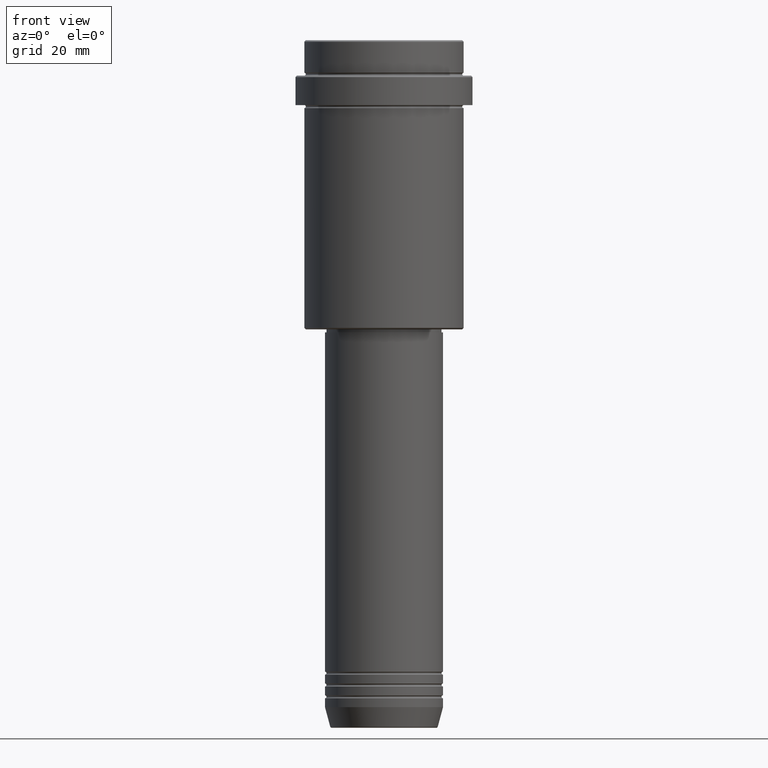
[diagram: clean part render]
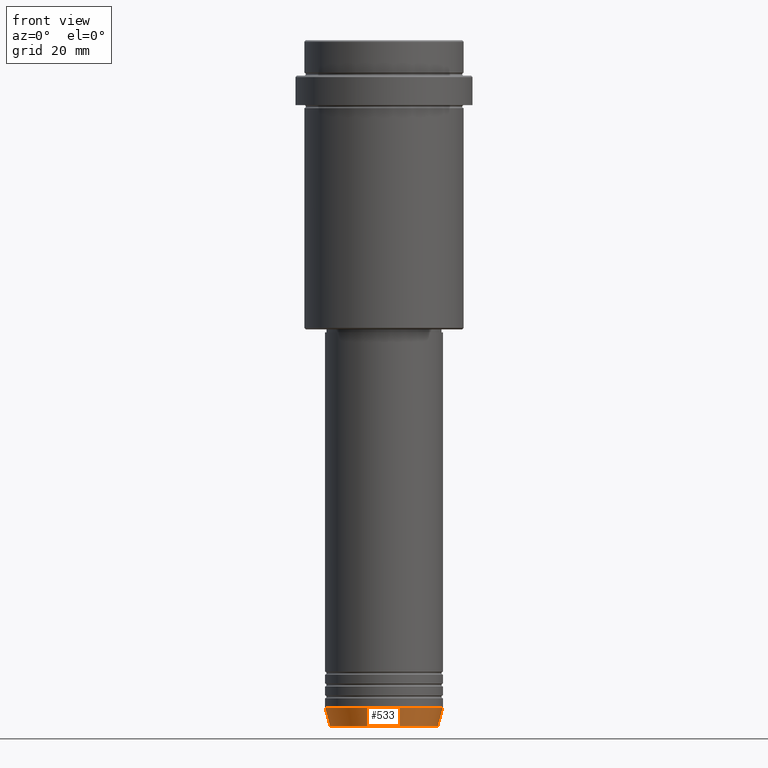
[diagram: same view with one face highlighted and labeled with its STEP entity id]
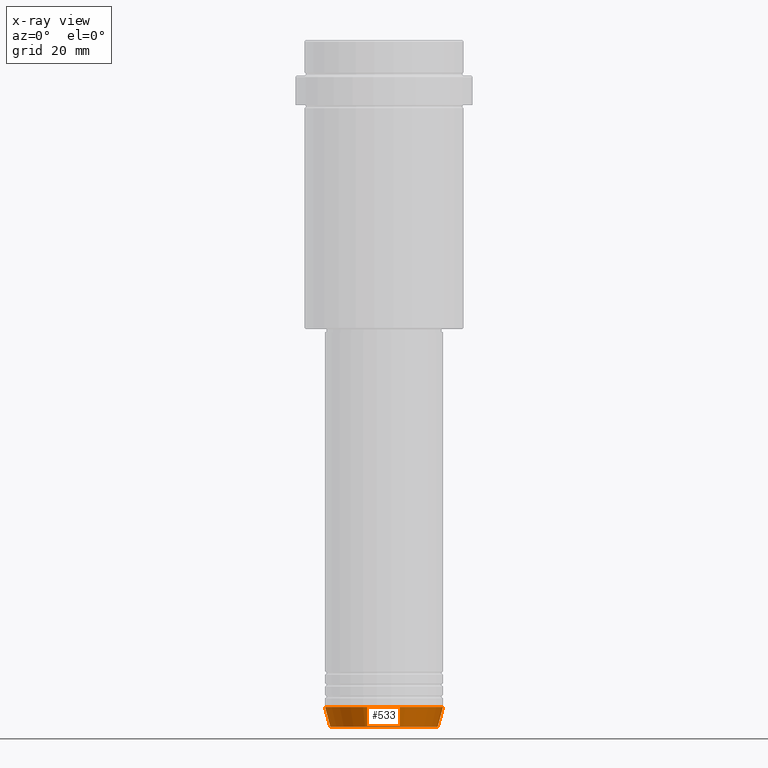
[diagram: x-ray of the same camera — body ghosted, the highlighted face saturated]
A machine part, front view. The second image highlights one B-rep face of the part: STEP entity #533.
The next image is the same camera in x-ray: the body ghosted, the highlighted face saturated — about 0% of this face is hidden behind the body in this view.
In plain terms, the highlighted conical surface has half-angle 15 deg.
Its self-contained STEP definition (entity closure, byte-faithful):
#15 = CARTESIAN_POINT ( 'NONE',  ( 20.00000000000000000, 0.000000000000000000, -225.9999999999999716 ) ) ;
#115 = FACE_OUTER_BOUND ( 'NONE', #1211, .T. ) ;
#156 = AXIS2_PLACEMENT_3D ( 'NONE', #305, #870, #1172 ) ;
#217 = VERTEX_POINT ( 'NONE', #1343 ) ;
#236 = LINE ( 'NONE', #15, #1347 ) ;
#256 = CARTESIAN_POINT ( 'NONE',  ( -18.22365507213719837, 2.340523841790265507E-15, -232.6294095225512422 ) ) ;
#299 = ORIENTED_EDGE ( 'NONE', *, *, #771, .T. ) ;
#305 = CARTESIAN_POINT ( 'NONE',  ( 0.000000000000000000, 0.000000000000000000, -225.9999999999999716 ) ) ;
#381 = ORIENTED_EDGE ( 'NONE', *, *, #1242, .F. ) ;
#393 = CARTESIAN_POINT ( 'NONE',  ( 0.000000000000000000, 0.000000000000000000, -225.9999999999999716 ) ) ;
#453 = DIRECTION ( 'NONE',  ( 0.2588190451025209060, 0.000000000000000000, 0.9659258262890682012 ) ) ;
#493 = VERTEX_POINT ( 'NONE', #1308 ) ;
#495 = CARTESIAN_POINT ( 'NONE',  ( -20.00000000000000000, 2.449293598294706513E-15, -225.9999999999999716 ) ) ;
#506 = DIRECTION ( 'NONE',  ( 1.000000000000000000, 0.000000000000000000, 0.000000000000000000 ) ) ;
#533 = ADVANCED_FACE ( 'NONE', ( #115 ), #689, .T. ) ;
#549 = VECTOR ( 'NONE', #1367, 1000.000000000000000 ) ;
#589 = DIRECTION ( 'NONE',  ( -0.000000000000000000, -0.000000000000000000, 1.000000000000000000 ) ) ;
#592 = CIRCLE ( 'NONE', #1300, 18.22365507213719837 ) ;
#624 = ORIENTED_EDGE ( 'NONE', *, *, #1138, .T. ) ;
#670 = DIRECTION ( 'NONE',  ( 1.000000000000000000, 0.000000000000000000, 0.000000000000000000 ) ) ;
#689 = CONICAL_SURFACE ( 'NONE', #156, 20.00000000000000000, 0.2617993877991495744 ) ;
#766 = VERTEX_POINT ( 'NONE', #256 ) ;
#771 = EDGE_CURVE ( 'NONE', #766, #1095, #592, .T. ) ;
#870 = DIRECTION ( 'NONE',  ( -0.000000000000000000, -0.000000000000000000, 1.000000000000000000 ) ) ;
#890 = CARTESIAN_POINT ( 'NONE',  ( 0.000000000000000000, 0.000000000000000000, -232.6294095225512422 ) ) ;
#903 = AXIS2_PLACEMENT_3D ( 'NONE', #393, #589, #506 ) ;
#915 = CARTESIAN_POINT ( 'NONE',  ( 18.22365507213719837, 0.000000000000000000, -232.6294095225512422 ) ) ;
#959 = ORIENTED_EDGE ( 'NONE', *, *, #1330, .F. ) ;
#1038 = CIRCLE ( 'NONE', #903, 20.00000000000000000 ) ;
#1044 = LINE ( 'NONE', #495, #549 ) ;
#1095 = VERTEX_POINT ( 'NONE', #915 ) ;
#1138 = EDGE_CURVE ( 'NONE', #1095, #493, #236, .T. ) ;
#1172 = DIRECTION ( 'NONE',  ( 1.000000000000000000, 0.000000000000000000, 0.000000000000000000 ) ) ;
#1211 = EDGE_LOOP ( 'NONE', ( #959, #299, #624, #381 ) ) ;
#1242 = EDGE_CURVE ( 'NONE', #217, #493, #1038, .T. ) ;
#1300 = AXIS2_PLACEMENT_3D ( 'NONE', #890, #1314, #670 ) ;
#1308 = CARTESIAN_POINT ( 'NONE',  ( 20.00000000000000000, 0.000000000000000000, -225.9999999999999716 ) ) ;
#1314 = DIRECTION ( 'NONE',  ( -0.000000000000000000, -0.000000000000000000, 1.000000000000000000 ) ) ;
#1330 = EDGE_CURVE ( 'NONE', #766, #217, #1044, .T. ) ;
#1343 = CARTESIAN_POINT ( 'NONE',  ( -20.00000000000000000, 2.449293598294706513E-15, -225.9999999999999716 ) ) ;
#1347 = VECTOR ( 'NONE', #453, 1000.000000000000000 ) ;
#1367 = DIRECTION ( 'NONE',  ( -0.2588190451025209060, 3.169619151431766790E-17, 0.9659258262890682012 ) ) ;